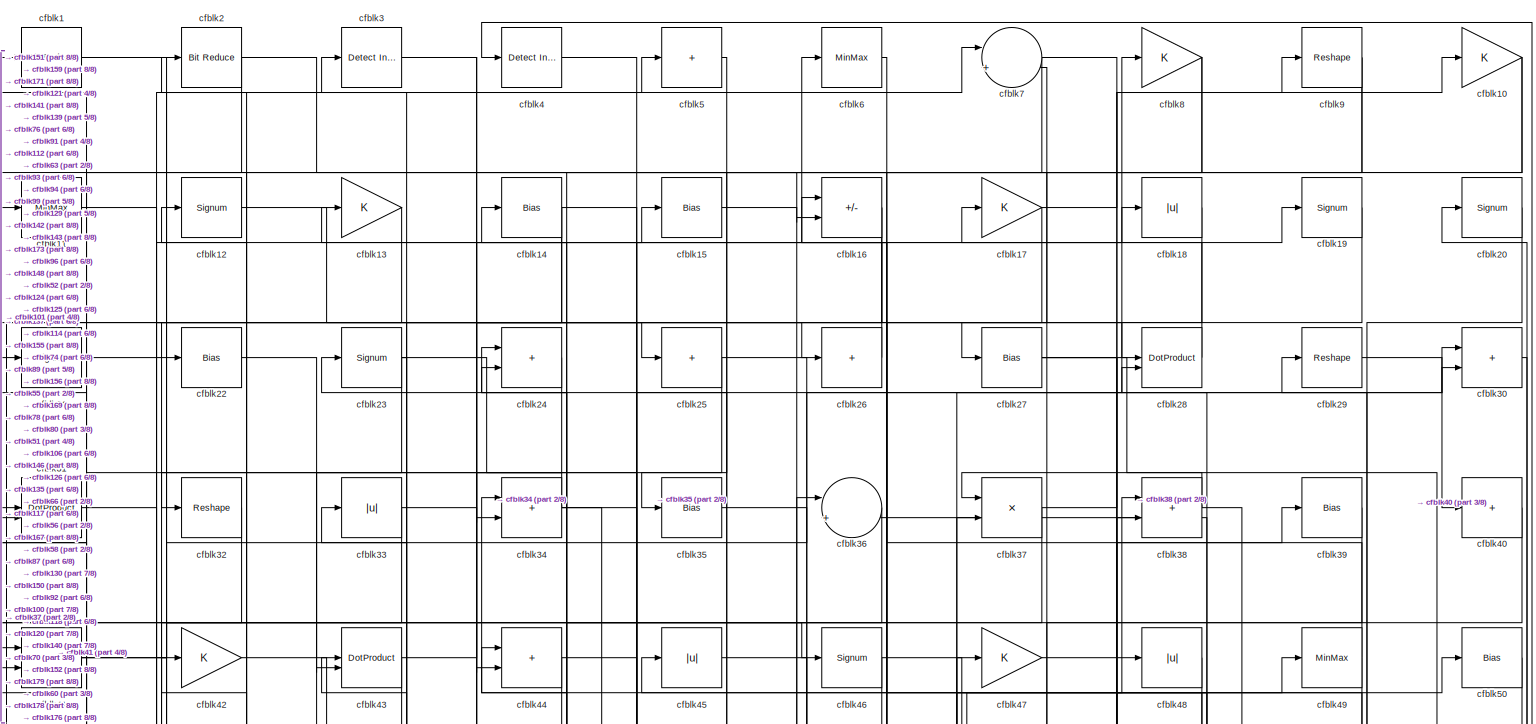
[diagram: root canvas - part 1/8, full width, top band]
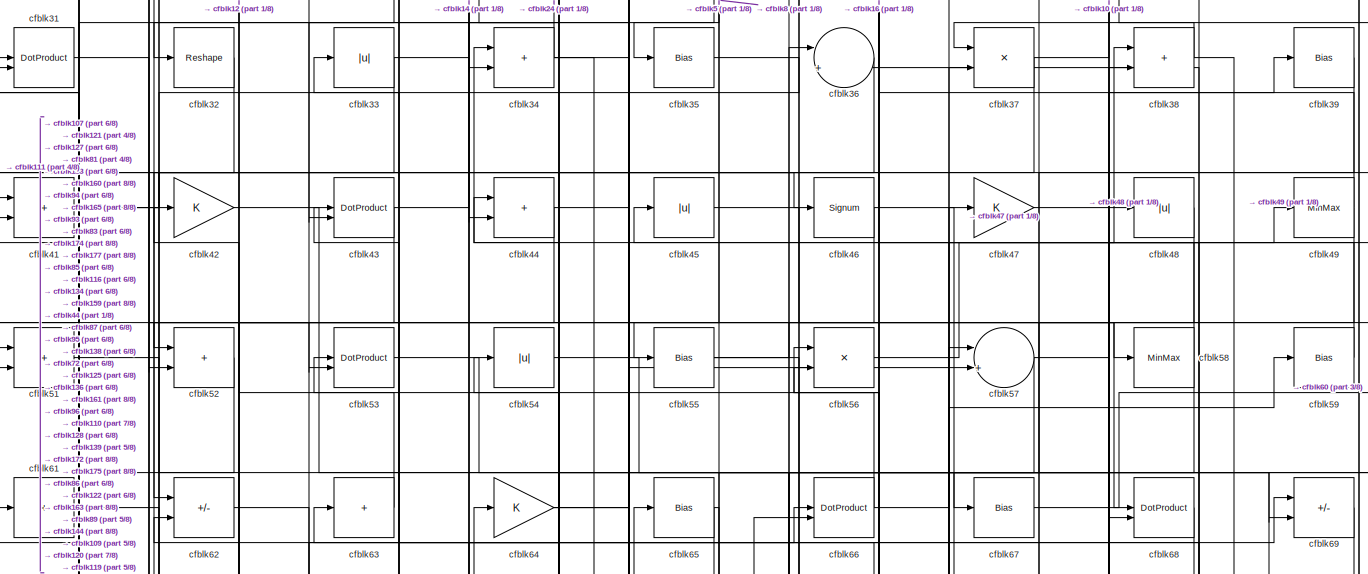
[diagram: root canvas - part 2/8, full width, top band]
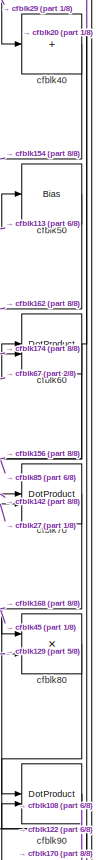
[diagram: root canvas - part 3/8, middle right region]
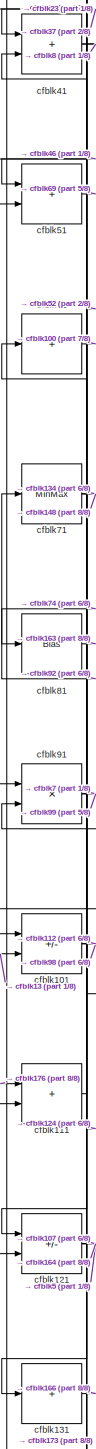
[diagram: root canvas - part 4/8, middle left region]
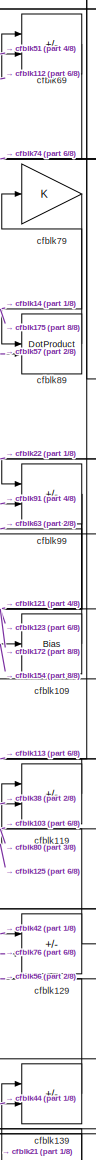
[diagram: root canvas - part 5/8, middle right region]
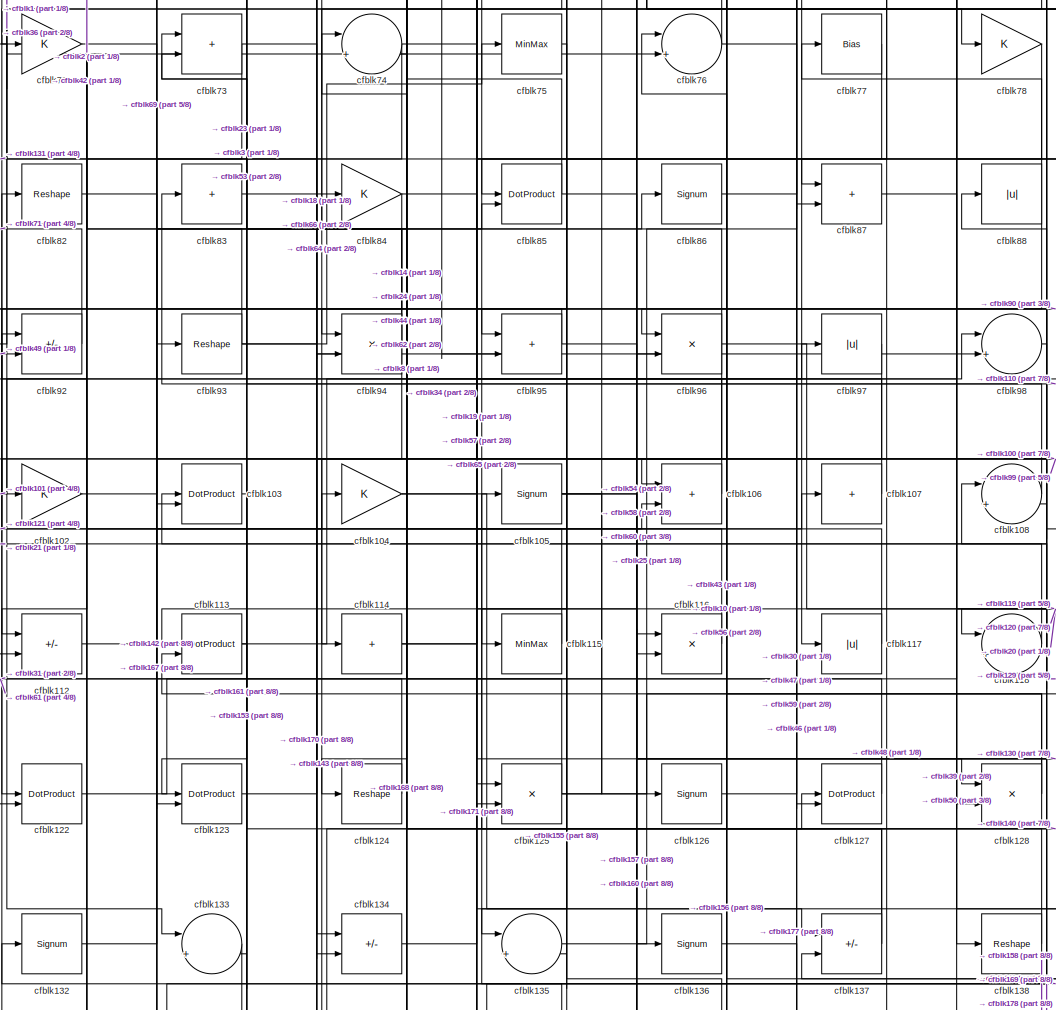
[diagram: root canvas - part 6/8, central region]
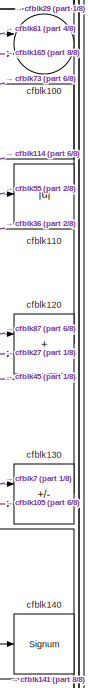
[diagram: root canvas - part 7/8, middle right region]
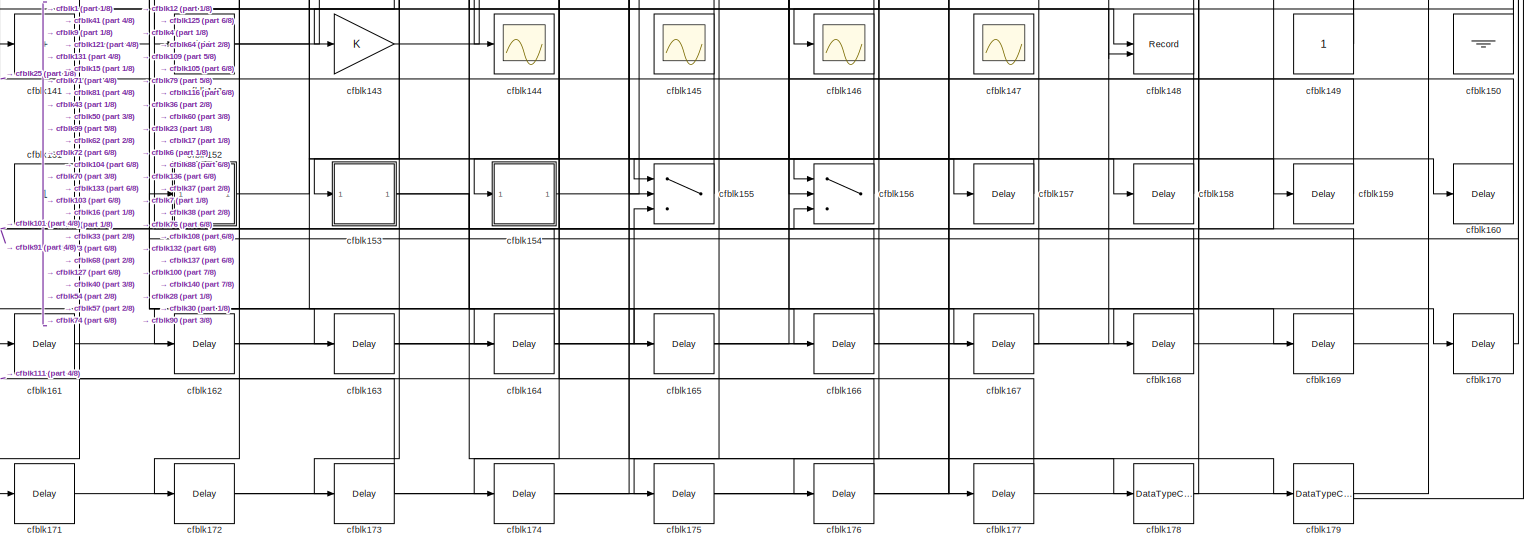
[diagram: root canvas - part 8/8, full width, bottom band]
MODEL slx_b27632b5cdb6
KIND model
CONFIG AbsTol = auto
CONFIG EnableMultiTasking = off
CONFIG FixedStep = auto
CONFIG MaxStep = auto
CONFIG MinStep = auto
CONFIG RelTol = 1e-3
CONFIG SampleTimeConstraint = Unconstrained
CONFIG SolverName = VariableStepAuto
CONFIG StartTime = 0.0
CONFIG StopTime = 10.0
BLOCK [Reference] cfblk1  REF=hdlsllib/Logic and Bit
Operations/Bit Reduce
  SourceBlock = hdlsllib/Logic and Bit\nOperations/Bit Reduce
  SourceType = Bit Reduce
BLOCK [Gain] cfblk10
BLOCK [Sum] cfblk100
  Inputs = |++
BLOCK [Sum] cfblk101
  IconShape = rectangular
  Inputs = +-
BLOCK [Gain] cfblk102
BLOCK [DotProduct] cfblk103
  OutDataTypeStr = Inherit: Inherit via internal rule
BLOCK [Gain] cfblk104
BLOCK [Signum] cfblk105
BLOCK [Sum] cfblk106
  IconShape = rectangular
BLOCK [Sum] cfblk107
  IconShape = rectangular
  Inputs = +
BLOCK [Sum] cfblk108
  Inputs = |++
BLOCK [Bias] cfblk109
  Bias = 0.0
  SaturateOnIntegerOverflow = off
BLOCK [MinMax] cfblk11
BLOCK [Abs] cfblk110
  SaturateOnIntegerOverflow = off
BLOCK [Sum] cfblk111
  IconShape = rectangular
BLOCK [Sum] cfblk112
  IconShape = rectangular
  Inputs = +-
BLOCK [DotProduct] cfblk113
  OutDataTypeStr = Inherit: Inherit via internal rule
BLOCK [Sum] cfblk114
  IconShape = rectangular
  Inputs = +
BLOCK [MinMax] cfblk115
BLOCK [Product] cfblk116
  Inputs = */
  RndMeth = Zero
  SaturateOnIntegerOverflow = on
BLOCK [Abs] cfblk117
  SaturateOnIntegerOverflow = off
BLOCK [Sum] cfblk118
  Inputs = |++
BLOCK [Sum] cfblk119
  IconShape = rectangular
  Inputs = +-
BLOCK [Signum] cfblk12
BLOCK [Sum] cfblk120
  IconShape = rectangular
BLOCK [Sum] cfblk121
  IconShape = rectangular
  Inputs = +-
BLOCK [DotProduct] cfblk122
  OutDataTypeStr = Inherit: Inherit via internal rule
BLOCK [DotProduct] cfblk123
  OutDataTypeStr = Inherit: Inherit via internal rule
BLOCK [Reshape] cfblk124
BLOCK [Product] cfblk125
  Inputs = */
  RndMeth = Zero
  SaturateOnIntegerOverflow = on
BLOCK [Signum] cfblk126
BLOCK [DotProduct] cfblk127
  OutDataTypeStr = Inherit: Inherit via internal rule
BLOCK [Product] cfblk128
  Inputs = */
  RndMeth = Zero
  SaturateOnIntegerOverflow = on
BLOCK [Sum] cfblk129
  IconShape = rectangular
  Inputs = +-
BLOCK [Gain] cfblk13
BLOCK [Sum] cfblk130
  IconShape = rectangular
  Inputs = +-
BLOCK [Sum] cfblk131
  IconShape = rectangular
  Inputs = +
BLOCK [Signum] cfblk132
BLOCK [Sum] cfblk133
  Inputs = |++
BLOCK [Sum] cfblk134
  IconShape = rectangular
  Inputs = +-
BLOCK [Sum] cfblk135
  Inputs = |++
BLOCK [Signum] cfblk136
BLOCK [Sum] cfblk137
  IconShape = rectangular
  Inputs = +-
BLOCK [Reshape] cfblk138
BLOCK [Sum] cfblk139
  IconShape = rectangular
  Inputs = +-
BLOCK [Bias] cfblk14
  Bias = 0.0
  SaturateOnIntegerOverflow = off
BLOCK [Signum] cfblk140
BLOCK [Sum] cfblk141
  IconShape = rectangular
  Inputs = +
BLOCK [MinMax] cfblk142
BLOCK [Gain] cfblk143
BLOCK [Scope] cfblk144
  Floating = off
  NumInputPorts = 1
  ScopeSpecificationString = Simulink.scopes.TimeScopeBlockCfg('CurrentConfiguration', extmgr.ConfigurationSet(extmgr.Configuration('Core','General UI',true),extmgr.Configuration('Core','Source UI',true),extmgr.Configuration('Sources','WiredSimulink',true,'DataLoggingVariableName','ScopeData2','DataLoggingSaveFormat','Array','DataLoggingLimitDataPoints',true,'DataLoggingDecimation','1'),extmgr.Configuration('Visuals','Time Do...<+868ch>
BLOCK [Scope] cfblk145
  Floating = on
  NumInputPorts = 1
  ScopeSpecificationString = Simulink.scopes.TimeScopeBlockCfg('CurrentConfiguration', extmgr.ConfigurationSet(extmgr.Configuration('Core','General UI',true,'FigureColor',[0.156862745098039 0.156862745098039 0.156862745098039]),extmgr.Configuration('Core','Source UI',true),extmgr.Configuration('Sources','WiredSimulink',true,'DataLoggingVariableName','ScopeData1','DataLoggingSaveFormat','StructureWithTime','DataLoggingLimitDat...<+2713ch>
BLOCK [Scope] cfblk146
  Floating = off
  NumInputPorts = 1
  ScopeSpecificationString = Simulink.scopes.TimeScopeBlockCfg('CurrentConfiguration', extmgr.ConfigurationSet(extmgr.Configuration('Core','General UI',true),extmgr.Configuration('Core','Source UI',true),extmgr.Configuration('Sources','WiredSimulink',true,'DataLoggingVariableName','ScopeData2','DataLoggingSaveFormat','Array','DataLoggingLimitDataPoints',true,'DataLoggingDecimation','1'),extmgr.Configuration('Visuals','Time Do...<+868ch>
BLOCK [Scope] cfblk147
  Floating = on
  NumInputPorts = 1
  ScopeSpecificationString = Simulink.scopes.TimeScopeBlockCfg('CurrentConfiguration', extmgr.ConfigurationSet(extmgr.Configuration('Core','General UI',true,'FigureColor',[0.156862745098039 0.156862745098039 0.156862745098039]),extmgr.Configuration('Core','Source UI',true),extmgr.Configuration('Sources','WiredSimulink',true,'DataLoggingVariableName','ScopeData1','DataLoggingSaveFormat','StructureWithTime','DataLoggingLimitDat...<+2713ch>
BLOCK [Record] cfblk148
  CompatibilityTag = XY
  FileSettingsInternal = {"entries":[{"content":{"excelSettings":{"content":{},"type":"Streamout.ExcelSettings"}},"type":"Streamout.FileSettingStorage","uuid":""}],"packageUris":["http:\/\/schema.mathworks.com\/mf0\/streamout_blocks\/R2020a"],"version":"1.0"}
  Layout = [1 1]
  SignalsInternal = {"entries":[{"content":{"signals":[{"content":{"blockPath":[],"dimensions":[1],"domain":"","lineColor":"#a2142f","plots":[1],"port":1,"signalID":1701,"signalName":"XY Graph:1"},"type":"RecordBlkView.Signal","uuid":""},{"content":{"blockPath":[],"dimensions":[1],"domain":"","lineColor":"#139fff","plots":[1],"port":2,"signalID":1704,"signalName":"XY Graph:2"},"type":"RecordBlkView.Signal","uuid":""}...<+146ch>
  VisualizationBindings = {"xyplotplugin":{"info":[{"series":[{"bindingParametersList":[{"parameter":"X-Axis","signalID":1701,"signalName":"XY Graph:1"},{"parameter":"Y-Axis","signalID":1704,"signalName":"XY Graph:2"}],"seriesID":51913}],"subplotID":1}]}}
  st = -1
BLOCK [Constant] cfblk149
  SampleTime = -1
BLOCK [Bias] cfblk15
  Bias = 0.0
  SaturateOnIntegerOverflow = off
BLOCK [Ground] cfblk150
BLOCK [Constant] cfblk151
  SampleTime = -1
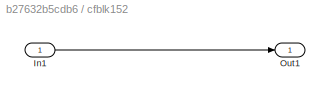
BLOCK [SubSystem] cfblk152
  LibrarySourceBlock = hdlsllib/Ports &\nSubsystems/Subsystem
BLOCK [Inport] cfblk152/In1
BLOCK [Outport] cfblk152/Out1
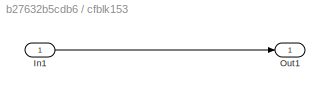
BLOCK [SubSystem] cfblk153
  LibrarySourceBlock = hdlsllib/Ports &\nSubsystems/Subsystem
BLOCK [Inport] cfblk153/In1
BLOCK [Outport] cfblk153/Out1
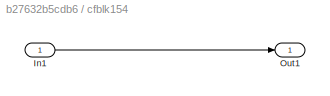
BLOCK [SubSystem] cfblk154
  LibrarySourceBlock = hdlsllib/Ports &\nSubsystems/Subsystem
BLOCK [Inport] cfblk154/In1
BLOCK [Outport] cfblk154/Out1
BLOCK [Switch] cfblk155
  InputSameDT = off
  SaturateOnIntegerOverflow = off
BLOCK [Switch] cfblk156
  InputSameDT = off
  SaturateOnIntegerOverflow = off
BLOCK [Delay] cfblk157
  InputPortMap = u0
  SampleTime = 1
BLOCK [Delay] cfblk158
  InputPortMap = u0
  SampleTime = 1
BLOCK [Delay] cfblk159
  InputPortMap = u0
  SampleTime = 1
BLOCK [Sum] cfblk16
  IconShape = rectangular
  Inputs = +-
BLOCK [Delay] cfblk160
  InputPortMap = u0
  SampleTime = 1
BLOCK [Delay] cfblk161
  InputPortMap = u0
  SampleTime = 1
BLOCK [Delay] cfblk162
  InputPortMap = u0
  SampleTime = 1
BLOCK [Delay] cfblk163
  InputPortMap = u0
  SampleTime = 1
BLOCK [Delay] cfblk164
  InputPortMap = u0
  SampleTime = 1
BLOCK [Delay] cfblk165
  InputPortMap = u0
  SampleTime = 1
BLOCK [Delay] cfblk166
  InputPortMap = u0
  SampleTime = 1
BLOCK [Delay] cfblk167
  InputPortMap = u0
  SampleTime = 1
BLOCK [Delay] cfblk168
  InputPortMap = u0
  SampleTime = 1
BLOCK [Delay] cfblk169
  InputPortMap = u0
  SampleTime = 1
BLOCK [Gain] cfblk17
BLOCK [Delay] cfblk170
  InputPortMap = u0
  SampleTime = 1
BLOCK [Delay] cfblk171
  InputPortMap = u0
  SampleTime = 1
BLOCK [Delay] cfblk172
  InputPortMap = u0
  SampleTime = 1
BLOCK [Delay] cfblk173
  InputPortMap = u0
  SampleTime = 1
BLOCK [Delay] cfblk174
  InputPortMap = u0
  SampleTime = 1
BLOCK [Delay] cfblk175
  InputPortMap = u0
  SampleTime = 1
BLOCK [Delay] cfblk176
  InputPortMap = u0
  SampleTime = 1
BLOCK [Delay] cfblk177
  InputPortMap = u0
  SampleTime = 1
BLOCK [DataTypeConversion] cfblk178
  OutDataTypeStr = uint8
  RndMeth = Floor
  SaturateOnIntegerOverflow = off
BLOCK [DataTypeConversion] cfblk179
  OutDataTypeStr = uint8
  RndMeth = Floor
  SaturateOnIntegerOverflow = off
BLOCK [Abs] cfblk18
  SaturateOnIntegerOverflow = off
BLOCK [Signum] cfblk19
BLOCK [Reference] cfblk2  REF=hdlsllib/Logic and Bit
Operations/Bit Reduce
  SourceBlock = hdlsllib/Logic and Bit\nOperations/Bit Reduce
  SourceType = Bit Reduce
BLOCK [Signum] cfblk20
BLOCK [Signum] cfblk21
BLOCK [Bias] cfblk22
  Bias = 0.0
  SaturateOnIntegerOverflow = off
BLOCK [Signum] cfblk23
BLOCK [Sum] cfblk24
  IconShape = rectangular
BLOCK [Sum] cfblk25
  IconShape = rectangular
  Inputs = +
BLOCK [Sum] cfblk26
  IconShape = rectangular
  Inputs = +
BLOCK [Bias] cfblk27
  Bias = 0.0
  SaturateOnIntegerOverflow = off
BLOCK [DotProduct] cfblk28
  OutDataTypeStr = Inherit: Inherit via internal rule
BLOCK [Reshape] cfblk29
BLOCK [Reference] cfblk3  REF=simulink/Logic and Bit
Operations/Detect
Increase
  LibrarySourceBlock = hdlsllib/Logic and Bit\nOperations/Detect\nIncrease
  SourceBlock = simulink/Logic and Bit\nOperations/Detect\nIncrease
  SourceType = Detect Increase
BLOCK [Sum] cfblk30
  IconShape = rectangular
BLOCK [DotProduct] cfblk31
  OutDataTypeStr = Inherit: Inherit via internal rule
BLOCK [Reshape] cfblk32
BLOCK [Abs] cfblk33
  SaturateOnIntegerOverflow = off
BLOCK [Sum] cfblk34
  IconShape = rectangular
BLOCK [Bias] cfblk35
  Bias = 0.0
  SaturateOnIntegerOverflow = off
BLOCK [Sum] cfblk36
  Inputs = |++
BLOCK [Product] cfblk37
  Inputs = */
  RndMeth = Zero
  SaturateOnIntegerOverflow = on
BLOCK [Sum] cfblk38
  IconShape = rectangular
BLOCK [Bias] cfblk39
  Bias = 0.0
  SaturateOnIntegerOverflow = off
BLOCK [Reference] cfblk4  REF=simulink/Logic and Bit
Operations/Detect
Increase
  LibrarySourceBlock = hdlsllib/Logic and Bit\nOperations/Detect\nIncrease
  SourceBlock = simulink/Logic and Bit\nOperations/Detect\nIncrease
  SourceType = Detect Increase
BLOCK [Sum] cfblk40
  IconShape = rectangular
  Inputs = +
BLOCK [Sum] cfblk41
  IconShape = rectangular
BLOCK [Gain] cfblk42
BLOCK [DotProduct] cfblk43
  OutDataTypeStr = Inherit: Inherit via internal rule
BLOCK [Sum] cfblk44
  IconShape = rectangular
BLOCK [Abs] cfblk45
  SaturateOnIntegerOverflow = off
BLOCK [Signum] cfblk46
BLOCK [Gain] cfblk47
BLOCK [Abs] cfblk48
  SaturateOnIntegerOverflow = off
BLOCK [MinMax] cfblk49
BLOCK [Sum] cfblk5
  IconShape = rectangular
  Inputs = +
BLOCK [Bias] cfblk50
  Bias = 0.0
  SaturateOnIntegerOverflow = off
BLOCK [Sum] cfblk51
  IconShape = rectangular
BLOCK [Sum] cfblk52
  IconShape = rectangular
BLOCK [DotProduct] cfblk53
  OutDataTypeStr = Inherit: Inherit via internal rule
BLOCK [Abs] cfblk54
  SaturateOnIntegerOverflow = off
BLOCK [Bias] cfblk55
  Bias = 0.0
  SaturateOnIntegerOverflow = off
BLOCK [Product] cfblk56
  Inputs = */
  RndMeth = Zero
  SaturateOnIntegerOverflow = on
BLOCK [Sum] cfblk57
  Inputs = |++
BLOCK [MinMax] cfblk58
BLOCK [Bias] cfblk59
  Bias = 0.0
  SaturateOnIntegerOverflow = off
BLOCK [MinMax] cfblk6
BLOCK [DotProduct] cfblk60
  OutDataTypeStr = Inherit: Inherit via internal rule
BLOCK [Sum] cfblk61
  IconShape = rectangular
  Inputs = +
BLOCK [Sum] cfblk62
  IconShape = rectangular
  Inputs = +-
BLOCK [Sum] cfblk63
  IconShape = rectangular
  Inputs = +
BLOCK [Gain] cfblk64
BLOCK [Bias] cfblk65
  Bias = 0.0
  SaturateOnIntegerOverflow = off
BLOCK [DotProduct] cfblk66
  OutDataTypeStr = Inherit: Inherit via internal rule
BLOCK [Bias] cfblk67
  Bias = 0.0
  SaturateOnIntegerOverflow = off
BLOCK [DotProduct] cfblk68
  OutDataTypeStr = Inherit: Inherit via internal rule
BLOCK [Sum] cfblk69
  IconShape = rectangular
  Inputs = +-
BLOCK [Sum] cfblk7
  Inputs = |++
BLOCK [DotProduct] cfblk70
  OutDataTypeStr = Inherit: Inherit via internal rule
BLOCK [MinMax] cfblk71
BLOCK [Gain] cfblk72
BLOCK [Sum] cfblk73
  IconShape = rectangular
BLOCK [Sum] cfblk74
  Inputs = |++
BLOCK [MinMax] cfblk75
BLOCK [Sum] cfblk76
  Inputs = |++
BLOCK [Bias] cfblk77
  Bias = 0.0
  SaturateOnIntegerOverflow = off
BLOCK [Gain] cfblk78
BLOCK [Gain] cfblk79
BLOCK [Gain] cfblk8
BLOCK [Product] cfblk80
  Inputs = */
  RndMeth = Zero
  SaturateOnIntegerOverflow = on
BLOCK [Bias] cfblk81
  Bias = 0.0
  SaturateOnIntegerOverflow = off
BLOCK [Reshape] cfblk82
BLOCK [Sum] cfblk83
  IconShape = rectangular
  Inputs = +
BLOCK [Gain] cfblk84
BLOCK [DotProduct] cfblk85
  OutDataTypeStr = Inherit: Inherit via internal rule
BLOCK [Signum] cfblk86
BLOCK [Sum] cfblk87
  IconShape = rectangular
BLOCK [Abs] cfblk88
  SaturateOnIntegerOverflow = off
BLOCK [DotProduct] cfblk89
  OutDataTypeStr = Inherit: Inherit via internal rule
BLOCK [Reshape] cfblk9
BLOCK [DotProduct] cfblk90
  OutDataTypeStr = Inherit: Inherit via internal rule
BLOCK [Product] cfblk91
  Inputs = */
  RndMeth = Zero
  SaturateOnIntegerOverflow = on
BLOCK [Sum] cfblk92
  IconShape = rectangular
  Inputs = +-
BLOCK [Reshape] cfblk93
BLOCK [Product] cfblk94
  Inputs = */
  RndMeth = Zero
  SaturateOnIntegerOverflow = on
BLOCK [Sum] cfblk95
  IconShape = rectangular
BLOCK [Product] cfblk96
  Inputs = */
  RndMeth = Zero
  SaturateOnIntegerOverflow = on
BLOCK [Abs] cfblk97
  SaturateOnIntegerOverflow = off
BLOCK [Sum] cfblk98
  Inputs = |++
BLOCK [Sum] cfblk99
  IconShape = rectangular
  Inputs = +-
NET cfblk100:1 -> cfblk114:1, cfblk29:1
NET cfblk101:1 -> cfblk112:2, cfblk98:1
LINE cfblk102:1 -> cfblk85:2
LINE cfblk103:1 -> cfblk153:1
NET cfblk104:1 -> cfblk137:1, cfblk97:1
NET cfblk105:1 -> cfblk126:1, cfblk130:2, cfblk157:1
LINE cfblk106:1 -> cfblk24:1
LINE cfblk107:1 -> cfblk31:2
LINE cfblk108:1 -> cfblk83:1
LINE cfblk109:1 -> cfblk63:1
NET cfblk10:1 -> cfblk106:1, cfblk112:1
LINE cfblk110:1 -> cfblk73:1
LINE cfblk111:1 -> cfblk91:2
LINE cfblk112:1 -> cfblk69:1
NET cfblk113:1 -> cfblk133:2, cfblk50:1
NET cfblk114:1 -> cfblk106:2, cfblk30:2
LINE cfblk115:1 -> cfblk82:1
LINE cfblk116:1 -> cfblk84:1
LINE cfblk117:1 -> cfblk92:1
LINE cfblk118:1 -> cfblk21:1
LINE cfblk119:1 -> cfblk113:1
LINE cfblk11:1 -> cfblk28:1
LINE cfblk120:1 -> cfblk36:2
NET cfblk121:1 -> cfblk107:1, cfblk164:1, cfblk5:1
LINE cfblk122:1 -> cfblk39:1
LINE cfblk123:1 -> cfblk98:2
LINE cfblk124:1 -> cfblk61:1
NET cfblk125:1 -> cfblk119:1, cfblk44:1, cfblk66:2
LINE cfblk126:1 -> cfblk30:1
LINE cfblk127:1 -> cfblk31:1
NET cfblk128:1 -> cfblk113:2, cfblk56:1
NET cfblk129:1 -> cfblk103:1, cfblk80:2
LINE cfblk12:1 -> cfblk155:2
LINE cfblk130:1 -> cfblk45:1
LINE cfblk131:1 -> cfblk166:1
LINE cfblk132:1 -> cfblk86:1
LINE cfblk133:1 -> cfblk161:1
LINE cfblk134:1 -> cfblk57:2
LINE cfblk135:1 -> cfblk47:1
LINE cfblk136:1 -> cfblk177:1
NET cfblk137:1 -> cfblk14:1, cfblk24:2
LINE cfblk138:1 -> cfblk65:1
LINE cfblk139:1 -> cfblk56:2
LINE cfblk13:1 -> cfblk101:2
NET cfblk140:1 -> cfblk141:1, cfblk73:2
LINE cfblk141:1 -> cfblk15:1
NET cfblk142:1 -> cfblk104:1, cfblk70:1
LINE cfblk143:1 -> cfblk127:1
NET cfblk149:1 -> cfblk132:1, cfblk137:2
NET cfblk14:1 -> cfblk44:2, cfblk52:2, cfblk89:1
LINE cfblk150:1 -> cfblk28:2
LINE cfblk151:1 -> cfblk25:1
LINE cfblk152/In1:1 -> cfblk152/Out1:1
LINE cfblk152:1 -> cfblk158:1
LINE cfblk153/In1:1 -> cfblk153/Out1:1
NET cfblk153:1 -> cfblk156:3, cfblk179:1
LINE cfblk154/In1:1 -> cfblk154/Out1:1
LINE cfblk154:1 -> cfblk109:1
LINE cfblk155:1 -> cfblk105:1
LINE cfblk156:1 -> cfblk23:1
LINE cfblk157:1 -> cfblk155:1
LINE cfblk158:1 -> cfblk76:1
LINE cfblk159:1 -> cfblk1:1
LINE cfblk15:1 -> cfblk169:1
LINE cfblk160:1 -> cfblk116:1
LINE cfblk161:1 -> cfblk36:1
LINE cfblk162:1 -> cfblk155:3
LINE cfblk163:1 -> cfblk38:2
LINE cfblk164:1 -> cfblk91:1
LINE cfblk165:1 -> cfblk100:2
LINE cfblk166:1 -> cfblk101:1
LINE cfblk167:1 -> cfblk7:2
LINE cfblk168:1 -> cfblk74:1
LINE cfblk169:1 -> cfblk108:1
NET cfblk16:1 -> cfblk173:1, cfblk22:1
LINE cfblk170:1 -> cfblk90:2
LINE cfblk171:1 -> cfblk125:2
LINE cfblk172:1 -> cfblk37:2
LINE cfblk173:1 -> cfblk41:2
LINE cfblk174:1 -> cfblk60:2
LINE cfblk175:1 -> cfblk57:1
LINE cfblk176:1 -> cfblk111:1
LINE cfblk177:1 -> cfblk54:1
LINE cfblk178:1 -> cfblk88:1
LINE cfblk179:1 -> cfblk4:1
NET cfblk17:1 -> cfblk146:1, cfblk9:1
LINE cfblk18:1 -> cfblk94:2
LINE cfblk19:1 -> cfblk96:1
LINE cfblk1:1 -> cfblk76:2
LINE cfblk20:1 -> cfblk118:1
LINE cfblk21:1 -> cfblk139:1
LINE cfblk22:1 -> cfblk99:1
NET cfblk23:1 -> cfblk125:1, cfblk143:1, cfblk51:1
LINE cfblk24:1 -> cfblk34:2
NET cfblk25:1 -> cfblk43:2, cfblk78:1
LINE cfblk26:1 -> cfblk6:1
NET cfblk27:1 -> cfblk120:2, cfblk140:1, cfblk70:2
LINE cfblk28:1 -> cfblk17:1
LINE cfblk29:1 -> cfblk40:1
NET cfblk2:1 -> cfblk11:1, cfblk16:2
LINE cfblk30:1 -> cfblk152:1
LINE cfblk31:1 -> cfblk53:2
LINE cfblk32:1 -> cfblk62:1
NET cfblk33:1 -> cfblk121:1, cfblk165:1
NET cfblk34:1 -> cfblk32:1, cfblk87:2, cfblk95:2
LINE cfblk35:1 -> cfblk68:1
LINE cfblk36:1 -> cfblk133:1
NET cfblk37:1 -> cfblk10:1, cfblk111:2
NET cfblk38:1 -> cfblk119:2, cfblk37:1
LINE cfblk39:1 -> cfblk67:1
NET cfblk3:1 -> cfblk148:2, cfblk26:1
LINE cfblk40:1 -> cfblk154:1
NET cfblk41:1 -> cfblk46:1, cfblk8:1
LINE cfblk42:1 -> cfblk129:1
NET cfblk43:1 -> cfblk142:1, cfblk18:1
NET cfblk44:1 -> cfblk139:2, cfblk52:1
LINE cfblk45:1 -> cfblk80:1
NET cfblk46:1 -> cfblk117:1, cfblk51:2
LINE cfblk47:1 -> cfblk38:1
LINE cfblk48:1 -> cfblk87:1
NET cfblk49:1 -> cfblk13:1, cfblk92:2
LINE cfblk4:1 -> cfblk178:1
LINE cfblk50:1 -> cfblk162:1
LINE cfblk51:1 -> cfblk69:2
LINE cfblk52:1 -> cfblk81:1
LINE cfblk53:1 -> cfblk68:2
LINE cfblk54:1 -> cfblk136:1
NET cfblk55:1 -> cfblk110:1, cfblk58:1
LINE cfblk56:1 -> cfblk48:1
NET cfblk57:1 -> cfblk174:1, cfblk89:2
NET cfblk58:1 -> cfblk16:1, cfblk96:2
LINE cfblk59:1 -> cfblk34:1
LINE cfblk5:1 -> cfblk35:1
NET cfblk60:1 -> cfblk156:2, cfblk20:1, cfblk85:1
LINE cfblk61:1 -> cfblk100:1
LINE cfblk62:1 -> cfblk160:1
LINE cfblk63:1 -> cfblk12:1
NET cfblk64:1 -> cfblk116:2, cfblk159:1
NET cfblk65:1 -> cfblk72:1, cfblk95:1
NET cfblk66:1 -> cfblk33:1, cfblk49:1
LINE cfblk67:1 -> cfblk60:1
LINE cfblk68:1 -> cfblk144:1
LINE cfblk69:1 -> cfblk74:2
LINE cfblk6:1 -> cfblk176:1
LINE cfblk70:1 -> cfblk168:1
NET cfblk71:1 -> cfblk134:1, cfblk148:1
LINE cfblk72:1 -> cfblk167:1
NET cfblk73:1 -> cfblk102:1, cfblk170:1
NET cfblk74:1 -> cfblk131:1, cfblk19:1
LINE cfblk75:1 -> cfblk135:2
NET cfblk76:1 -> cfblk129:2, cfblk43:1
LINE cfblk77:1 -> cfblk135:1
LINE cfblk78:1 -> cfblk103:2
LINE cfblk79:1 -> cfblk175:1
NET cfblk7:1 -> cfblk130:1, cfblk41:1
LINE cfblk80:1 -> cfblk90:1
LINE cfblk81:1 -> cfblk163:1
LINE cfblk82:1 -> cfblk93:1
LINE cfblk83:1 -> cfblk64:1
NET cfblk84:1 -> cfblk122:1, cfblk127:2
NET cfblk85:1 -> cfblk128:2, cfblk62:2
LINE cfblk86:1 -> cfblk59:1
LINE cfblk87:1 -> cfblk120:1
NET cfblk88:1 -> cfblk156:1, cfblk77:1
LINE cfblk89:1 -> cfblk79:1
NET cfblk8:1 -> cfblk124:1, cfblk55:1
NET cfblk90:1 -> cfblk108:2, cfblk122:2
NET cfblk91:1 -> cfblk7:1, cfblk99:2
LINE cfblk92:1 -> cfblk71:1
NET cfblk93:1 -> cfblk42:1, cfblk66:1, cfblk75:1
NET cfblk94:1 -> cfblk123:2, cfblk2:1, cfblk53:1
NET cfblk95:1 -> cfblk128:1, cfblk94:1
NET cfblk96:1 -> cfblk134:2, cfblk138:1, cfblk3:1
LINE cfblk97:1 -> cfblk115:1
LINE cfblk98:1 -> cfblk118:2
NET cfblk99:1 -> cfblk121:2, cfblk123:1, cfblk172:1
NET cfblk9:1 -> cfblk171:1, cfblk27:1
note: NET lines group one-source signal fan-out (src -> all destinations, sorted); 1:1 wires keep LINE
